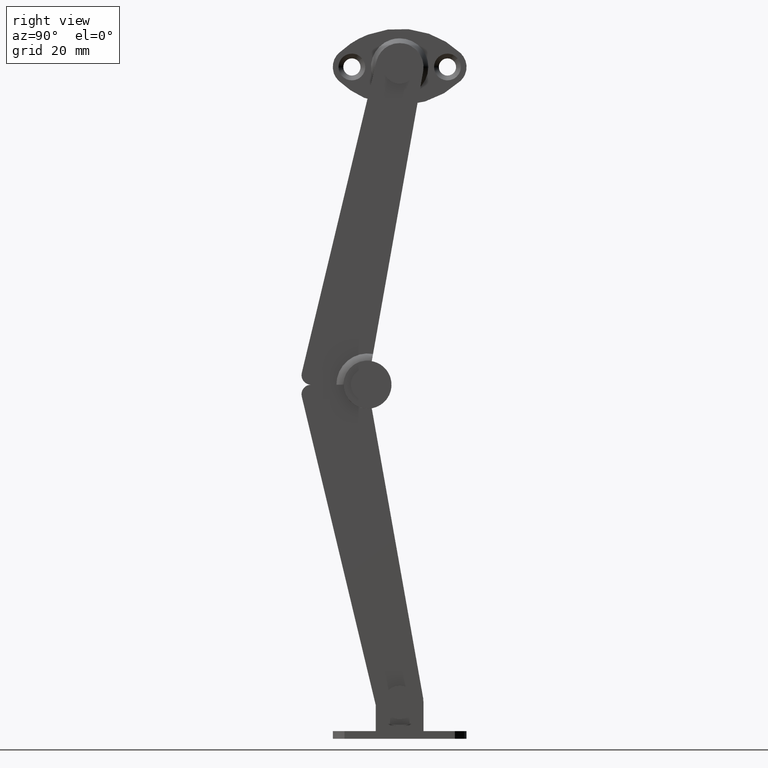
[diagram: clean part render]
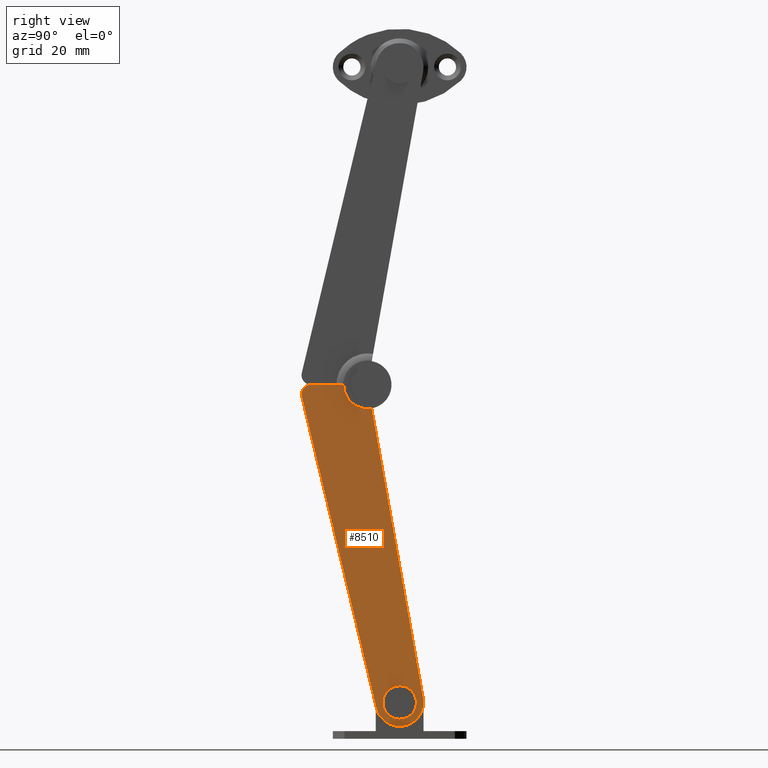
[diagram: same view with one face highlighted and labeled with its STEP entity id]
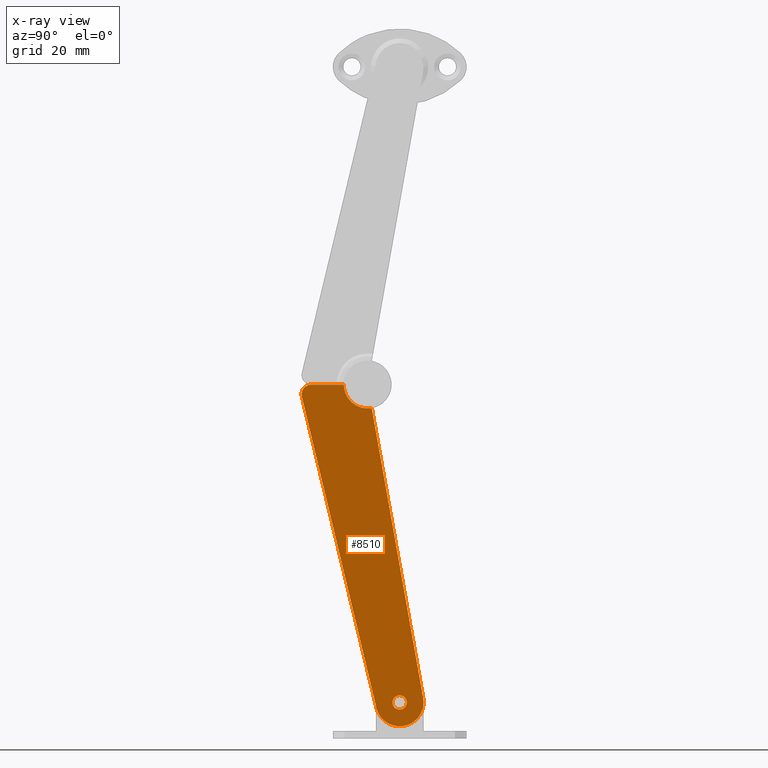
[diagram: x-ray of the same camera — body ghosted, the highlighted face saturated]
A machine part, right view. The second image highlights one B-rep face of the part: STEP entity #8510.
The next image is the same camera in x-ray: the body ghosted, the highlighted face saturated — about 0% of this face is hidden behind the body in this view.
In plain terms, the highlighted face is a freeform B-spline surface patch.
Its self-contained STEP definition (entity closure, byte-faithful):
#7966=CARTESIAN_POINT('',(7.100011999999881,4.869979E-014,-65.0));
#7967=VERTEX_POINT('',#7966);
#7968=CARTESIAN_POINT('',(7.100011999966968,1.074975967123264,-65.453852864939577));
#7969=VERTEX_POINT('',#7968);
#7970=CARTESIAN_POINT('',(7.100011999999881,4.869979E-014,-65.0));
#7971=CARTESIAN_POINT('',(7.100011999993006,0.224773591352829,-64.999651549693823));
#7972=CARTESIAN_POINT('',(7.100011999980757,0.623908909990379,-65.091558619646662));
#7973=CARTESIAN_POINT('',(7.100011999970712,0.953141550369316,-65.328522693373401));
#7974=CARTESIAN_POINT('',(7.100011999966968,1.074975967123264,-65.453852864939577));
#7975=B_SPLINE_CURVE_WITH_KNOTS('',3,(#7970,#7971,#7972,#7973,#7974),.UNSPECIFIED.,.F.,.U.,(4,1,4),(0.000000091366152,0.674147681876949,1.198513693698096),.UNSPECIFIED.);
#7976=EDGE_CURVE('',#7967,#7969,#7975,.T.);
#7978=CARTESIAN_POINT('',(7.100011999999881,-1.499999999995161,-66.499996209384832));
#7979=VERTEX_POINT('',#7978);
#7980=CARTESIAN_POINT('',(7.100011999999881,-1.499999999995161,-66.499996209384832));
#7981=CARTESIAN_POINT('',(7.100011999999878,-1.500020453523283,-66.377280023987680));
#7982=CARTESIAN_POINT('',(7.100011999999881,-1.465221779142598,-66.095007786825988));
#7983=CARTESIAN_POINT('',(7.100011999999889,-1.303650668734076,-65.718087050627773));
#7984=CARTESIAN_POINT('',(7.100011999999855,-0.989948443533951,-65.335581434411026));
#7985=CARTESIAN_POINT('',(7.100011999999896,-0.552293478771819,-65.065919101511398));
#7986=CARTESIAN_POINT('',(7.100011999999902,-0.171792199790931,-64.999929407194458));
#7987=CARTESIAN_POINT('',(7.100011999999881,4.869979E-014,-65.0));
#7988=B_SPLINE_CURVE_WITH_KNOTS('',3,(#7980,#7981,#7982,#7983,#7984,#7985,#7986,#7987),.UNSPECIFIED.,.F.,.U.,(4,1,1,1,1,4),(0.000000373356760,0.368161913734736,0.846804489907758,1.214887288878097,1.840828086476519,2.356251480062229),.UNSPECIFIED.);
#7989=EDGE_CURVE('',#7979,#7967,#7988,.T.);
#7991=CARTESIAN_POINT('',(7.100011999999881,4.869979E-014,-68.0));
#7992=VERTEX_POINT('',#7991);
#7993=CARTESIAN_POINT('',(7.100011999999881,4.869979E-014,-68.0));
#7994=CARTESIAN_POINT('',(7.100011999999890,-0.220961710060305,-68.000305550306507));
#7995=CARTESIAN_POINT('',(7.100011999999892,-0.564260386099650,-67.922676095802075));
#7996=CARTESIAN_POINT('',(7.100011999999877,-0.992571141777037,-67.651383555440731));
#7997=CARTESIAN_POINT('',(7.100011999999885,-1.272507998772117,-67.334845228760628));
#7998=CARTESIAN_POINT('',(7.100011999999863,-1.458084868275142,-66.929481578978084));
#7999=CARTESIAN_POINT('',(7.100011999999897,-1.500068658488159,-66.647263764538906));
#8000=CARTESIAN_POINT('',(7.100011999999881,-1.499999999995161,-66.499996209384832));
#8001=B_SPLINE_CURVE_WITH_KNOTS('',3,(#7993,#7994,#7995,#7996,#7997,#7998,#7999,#8000),.UNSPECIFIED.,.F.,.U.,(4,1,1,1,1,4),(0.000000368183724,0.662703733667904,1.030907449646536,1.509450104081498,1.914465666482437,2.356255753075678),.UNSPECIFIED.);
#8002=EDGE_CURVE('',#7992,#7979,#8001,.T.);
#8004=CARTESIAN_POINT('',(7.100012000060316,1.105916868677676,-67.513385766485555));
#8005=VERTEX_POINT('',#8004);
#8006=CARTESIAN_POINT('',(7.100012000060316,1.105916868677676,-67.513385766485555));
#8007=CARTESIAN_POINT('',(7.100012000056005,1.027164563071986,-67.599349828699985));
#8008=CARTESIAN_POINT('',(7.100012000045228,0.829780778049698,-67.769868438393630));
#8009=CARTESIAN_POINT('',(7.100012000024655,0.453344980522236,-67.953277032698097));
#8010=CARTESIAN_POINT('',(7.100012000008378,0.155458053690400,-68.000073769830863));
#8011=CARTESIAN_POINT('',(7.100011999999881,4.869979E-014,-68.0));
#8012=B_SPLINE_CURVE_WITH_KNOTS('',3,(#8006,#8007,#8008,#8009,#8010,#8011),.UNSPECIFIED.,.F.,.U.,(4,1,1,4),(0.000000109819510,0.349761105507704,0.777222282450653,1.243582499132062),.UNSPECIFIED.);
#8013=EDGE_CURVE('',#8005,#7992,#8012,.T.);
#8090=CARTESIAN_POINT('',(7.100011999999881,1.499999999995259,-66.500003790615153));
#8091=VERTEX_POINT('',#8090);
#8092=CARTESIAN_POINT('',(7.100011999966968,1.074975967123264,-65.453852864939577));
#8093=CARTESIAN_POINT('',(7.100011999970229,1.175924378874091,-65.557535721384227));
#8094=CARTESIAN_POINT('',(7.100011999980167,1.404810978369751,-65.873335246173127));
#8095=CARTESIAN_POINT('',(7.100011999992288,1.500492706414012,-66.258700141680777));
#8096=CARTESIAN_POINT('',(7.100011999999881,1.499999999995259,-66.500003790615153));
#8097=B_SPLINE_CURVE_WITH_KNOTS('',3,(#8092,#8093,#8094,#8095,#8096),.UNSPECIFIED.,.F.,.U.,(4,1,4),(0.000000076974177,0.434167240469693,1.157743022206021),.UNSPECIFIED.);
#8098=EDGE_CURVE('',#7969,#8091,#8097,.T.);
#8120=CARTESIAN_POINT('',(7.100011999999881,1.499999999995259,-66.500003790615153));
#8121=CARTESIAN_POINT('',(7.100012000013703,1.500453647399874,-66.731902485545632));
#8122=CARTESIAN_POINT('',(7.100012000035814,1.412179539445137,-67.102328047267193));
#8123=CARTESIAN_POINT('',(7.100012000054201,1.199907701167680,-67.410868914956069));
#8124=CARTESIAN_POINT('',(7.100012000060316,1.105916868677676,-67.513385766485555));
#8125=B_SPLINE_CURVE_WITH_KNOTS('',3,(#8120,#8121,#8122,#8123,#8124),.UNSPECIFIED.,.F.,.U.,(4,1,4),(0.000000079508007,0.695407453379956,1.112668614596840),.UNSPECIFIED.);
#8126=EDGE_CURVE('',#8091,#8005,#8125,.T.);
#8220=CARTESIAN_POINT('',(7.100011999999881,-13.373183964793879,-0.000468127335390));
#8221=VERTEX_POINT('',#8220);
#8227=CARTESIAN_POINT('',(7.100011999999881,-11.710388000000000,0.000031872664607));
#8228=VERTEX_POINT('',#8227);
#8229=CARTESIAN_POINT('',(7.100011999999881,-11.710388000000000,0.000031872664607));
#8230=CARTESIAN_POINT('',(7.100011999999881,-13.373183964793879,-0.000468127335390));
#8231=QUASI_UNIFORM_CURVE('',1,(#8229,#8230),.UNSPECIFIED.,.F.,.U.);
#8232=EDGE_CURVE('',#8228,#8221,#8231,.T.);
#8417=CARTESIAN_POINT('',(7.100011999999891,6.274261715574513,-75.070722078933017));
#8418=CARTESIAN_POINT('',(7.100011999999890,-21.818649170215490,-75.070722078933017));
#8419=CARTESIAN_POINT('',(7.100011999999891,6.274261715574513,3.571426734201739));
#8420=CARTESIAN_POINT('',(7.100011999999890,-21.818649170215490,3.571426734201739));
#8421=B_SPLINE_SURFACE_WITH_KNOTS('',1,1,((#8417,#8419),(#8418,#8420)),.UNSPECIFIED.,.F.,.F.,.U.,(2,2),(2,2),(0.0,28.092910885790001),(0.0,78.642148813134753),.UNSPECIFIED.);
#8422=CARTESIAN_POINT('',(7.100011999999881,-5.842128892804000,-4.924004552549490));
#8423=VERTEX_POINT('',#8422);
#8424=CARTESIAN_POINT('',(7.100011999999881,-5.842128892804000,-4.924004552549490));
#8425=CARTESIAN_POINT('',(7.100011999999880,-6.334476828882804,-5.011056385466296));
#8426=CARTESIAN_POINT('',(7.100011999999860,-7.322419543350017,-5.034967542483928));
#8427=CARTESIAN_POINT('',(7.100011999999933,-8.650618170511828,-4.669432081734124));
#8428=CARTESIAN_POINT('',(7.100011999999826,-9.638881967323826,-4.093249335764138));
#8429=CARTESIAN_POINT('',(7.100011999999913,-10.457858635734450,-3.367140751447948));
#8430=CARTESIAN_POINT('',(7.100011999999870,-11.068779844584100,-2.536378623254541));
#8431=CARTESIAN_POINT('',(7.100011999999889,-11.577231255514180,-1.363329414688062));
#8432=CARTESIAN_POINT('',(7.100011999999881,-11.710687491325830,-0.522706216732306));
#8433=CARTESIAN_POINT('',(7.100011999999881,-11.710388000000000,0.000031872664607));
#8434=B_SPLINE_CURVE_WITH_KNOTS('',3,(#8424,#8425,#8426,#8427,#8428,#8429,#8430,#8431,#8432,#8433),.UNSPECIFIED.,.F.,.U.,(4,1,1,1,1,1,1,4),(0.000000242227955,1.499889491861158,2.931639951632413,4.090713891593093,4.908782618526394,6.204150759223795,7.158655280706027,8.726733232147774),.UNSPECIFIED.);
#8435=EDGE_CURVE('',#8423,#8228,#8434,.T.);
#8436=ORIENTED_EDGE('',*,*,#8435,.T.);
#8437=ORIENTED_EDGE('',*,*,#8232,.T.);
#8438=CARTESIAN_POINT('',(7.100011999999881,-18.606084933969299,-0.000968127335389));
#8439=VERTEX_POINT('',#8438);
#8440=CARTESIAN_POINT('',(7.100011999999881,-13.373183964793879,-0.000468127335390));
#8441=CARTESIAN_POINT('',(7.100011999999881,-18.606084933969299,-0.000968127335389));
#8442=QUASI_UNIFORM_CURVE('',1,(#8440,#8441),.UNSPECIFIED.,.F.,.U.);
#8443=EDGE_CURVE('',#8221,#8439,#8442,.T.);
#8444=ORIENTED_EDGE('',*,*,#8443,.T.);
#8445=CARTESIAN_POINT('',(7.100011999999881,-20.488352710259999,-2.463788323870580));
#8446=VERTEX_POINT('',#8445);
#8447=CARTESIAN_POINT('',(7.100011999999881,-20.488352710259999,-2.463788323870580));
#8448=CARTESIAN_POINT('',(7.100011999999890,-20.535574275226121,-2.266162741634915));
#8449=CARTESIAN_POINT('',(7.100011999999871,-20.567370878351330,-1.875066915899724));
#8450=CARTESIAN_POINT('',(7.100011999999881,-20.432028178698410,-1.236473351692175));
#8451=CARTESIAN_POINT('',(7.100011999999876,-20.121482014732869,-0.720540510740123));
#8452=CARTESIAN_POINT('',(7.100011999999899,-19.675894129032940,-0.326552229774745));
#8453=CARTESIAN_POINT('',(7.100011999999837,-19.194927716632549,-0.079252725498782));
#8454=CARTESIAN_POINT('',(7.100011999999948,-18.809177447013830,-0.007288676749436));
#8455=CARTESIAN_POINT('',(7.100011999999881,-18.606084933969299,-0.000968127335389));
#8456=B_SPLINE_CURVE_WITH_KNOTS('',3,(#8447,#8448,#8449,#8450,#8451,#8452,#8453,#8454,#8455),.UNSPECIFIED.,.F.,.U.,(4,1,1,1,1,1,4),(0.000000371631070,0.609542455874486,1.163733673920915,1.939467731084705,2.382818861018563,2.937010103510358,3.546552521936531),.UNSPECIFIED.);
#8457=EDGE_CURVE('',#8446,#8439,#8456,.T.);
#8458=ORIENTED_EDGE('',*,*,#8457,.F.);
#8459=CARTESIAN_POINT('',(7.100011999999881,-4.827430288942176,-67.802297413259652));
#8460=VERTEX_POINT('',#8459);
#8461=CARTESIAN_POINT('',(7.100011999999881,-20.488352710259999,-2.463788323870580));
#8462=CARTESIAN_POINT('',(7.100011999999881,-4.827430288942176,-67.802297413259652));
#8463=QUASI_UNIFORM_CURVE('',1,(#8461,#8462),.UNSPECIFIED.,.F.,.U.);
#8464=EDGE_CURVE('',#8446,#8460,#8463,.T.);
#8465=ORIENTED_EDGE('',*,*,#8464,.T.);
#8466=CARTESIAN_POINT('',(7.100011999999881,1.094657818442403,-71.378739003897635));
#8467=VERTEX_POINT('',#8466);
#8468=CARTESIAN_POINT('',(7.100011999999881,1.094657818442403,-71.378739003897635));
#8469=CARTESIAN_POINT('',(7.100011999999881,0.764637874166635,-71.452808006365174));
#8470=CARTESIAN_POINT('',(7.100011999999895,0.010066181186490,-71.543261757147306));
#8471=CARTESIAN_POINT('',(7.100011999999851,-1.106410011357754,-71.422693031066686));
#8472=CARTESIAN_POINT('',(7.100011999999933,-2.068411866444671,-71.081938540971322));
#8473=CARTESIAN_POINT('',(7.100011999999804,-2.847627406266691,-70.636344611882123));
#8474=CARTESIAN_POINT('',(7.100011999999896,-3.577378196970307,-70.045631815289340));
#8475=CARTESIAN_POINT('',(7.100011999999952,-4.334637706158139,-69.111776434194894));
#8476=CARTESIAN_POINT('',(7.100011999999773,-4.698087737198237,-68.282604288819215));
#8477=CARTESIAN_POINT('',(7.100011999999881,-4.827430288942176,-67.802297413259652));
#8478=B_SPLINE_CURVE_WITH_KNOTS('',3,(#8468,#8469,#8470,#8471,#8472,#8473,#8474,#8475,#8476,#8477),.UNSPECIFIED.,.F.,.U.,(4,1,1,1,1,1,1,4),(0.000000174066917,1.014704987652559,2.268177146686372,3.342608560299478,4.058805244113811,4.954151294087192,6.147951077396038,7.640157704867540),.UNSPECIFIED.);
#8479=EDGE_CURVE('',#8467,#8460,#8478,.T.);
#8480=ORIENTED_EDGE('',*,*,#8479,.F.);
#8481=CARTESIAN_POINT('',(7.100011999999881,4.921107031915490,-65.615023812553702));
#8482=VERTEX_POINT('',#8481);
#8483=CARTESIAN_POINT('',(7.100011999999881,4.921107031915490,-65.615023812553702));
#8484=CARTESIAN_POINT('',(7.100011999999880,4.981012479729195,-65.947910187450390));
#8485=CARTESIAN_POINT('',(7.100011999999885,5.035950999698178,-66.665764118721441));
#8486=CARTESIAN_POINT('',(7.100011999999872,4.870364768112772,-67.855794335468843));
#8487=CARTESIAN_POINT('',(7.100011999999887,4.344367031747257,-69.117437235680015));
#8488=CARTESIAN_POINT('',(7.100011999999870,3.488806449538142,-70.159053334297994));
#8489=CARTESIAN_POINT('',(7.100011999999868,2.386474239263380,-70.956935395691602));
#8490=CARTESIAN_POINT('',(7.100011999999929,1.580058904461630,-71.270048316881670));
#8491=CARTESIAN_POINT('',(7.100011999999881,1.094657818442403,-71.378739003897635));
#8492=B_SPLINE_CURVE_WITH_KNOTS('',3,(#8483,#8484,#8485,#8486,#8487,#8488,#8489,#8490,#8491),.UNSPECIFIED.,.F.,.U.,(4,1,1,1,1,1,4),(0.000000174081114,1.014705843578155,2.148798454451528,3.581356370058533,5.073532299059660,6.147956263410171,7.640164149579418),.UNSPECIFIED.);
#8493=EDGE_CURVE('',#8482,#8467,#8492,.T.);
#8494=ORIENTED_EDGE('',*,*,#8493,.F.);
#8495=CARTESIAN_POINT('',(7.100011999999881,4.921107031915490,-65.615023812553702));
#8496=CARTESIAN_POINT('',(7.100011999999881,-5.842128892804000,-4.924004552549490));
#8497=QUASI_UNIFORM_CURVE('',1,(#8495,#8496),.UNSPECIFIED.,.F.,.U.);
#8498=EDGE_CURVE('',#8482,#8423,#8497,.T.);
#8499=ORIENTED_EDGE('',*,*,#8498,.T.);
#8500=EDGE_LOOP('',(#8436,#8437,#8444,#8458,#8465,#8480,#8494,#8499));
#8501=FACE_OUTER_BOUND('',#8500,.T.);
#8502=ORIENTED_EDGE('',*,*,#8002,.T.);
#8503=ORIENTED_EDGE('',*,*,#7989,.T.);
#8504=ORIENTED_EDGE('',*,*,#7976,.T.);
#8505=ORIENTED_EDGE('',*,*,#8098,.T.);
#8506=ORIENTED_EDGE('',*,*,#8126,.T.);
#8507=ORIENTED_EDGE('',*,*,#8013,.T.);
#8508=EDGE_LOOP('',(#8502,#8503,#8504,#8505,#8506,#8507));
#8509=FACE_BOUND('',#8508,.T.);
#8510=ADVANCED_FACE('',(#8501,#8509),#8421,.F.);